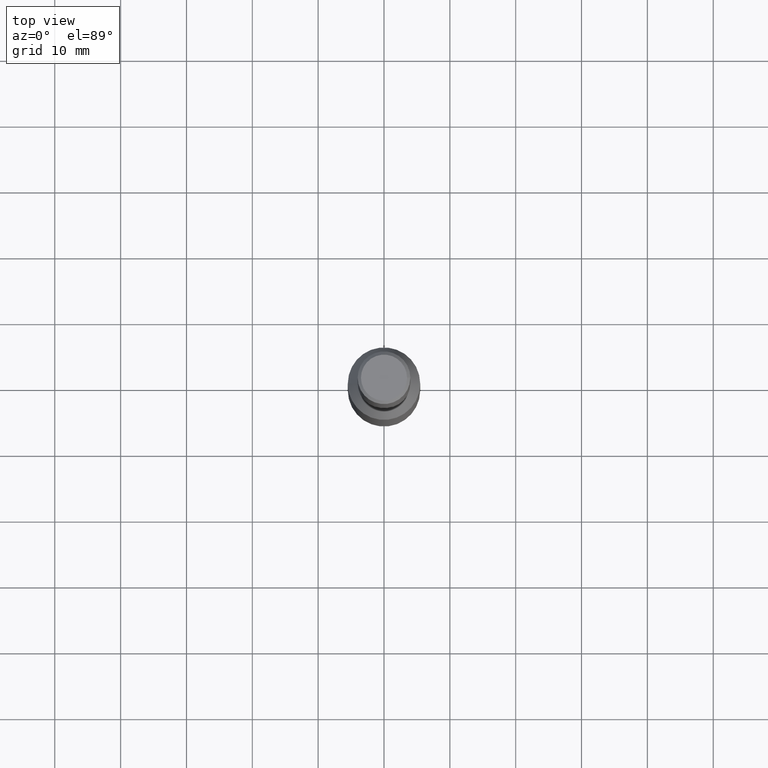
[diagram: clean part render]
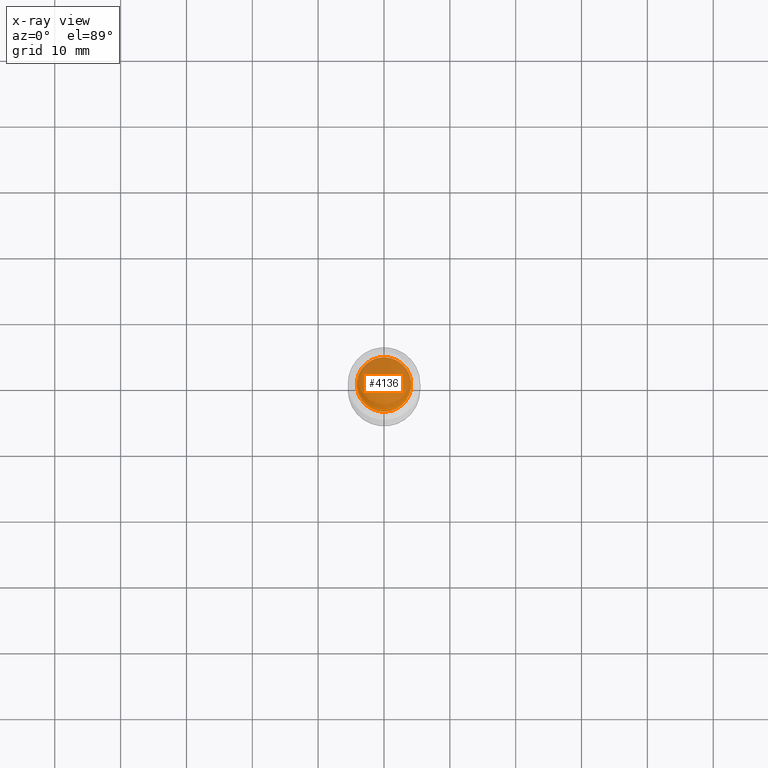
[diagram: x-ray — body ghosted, one internal face saturated and labeled with its STEP entity id]
A machine part, top view, then the same camera in x-ray: the body is ghosted and one INTERNAL B-rep face — a face not visible from any outside direction — is saturated and labeled: STEP entity #4136.
In plain terms, the highlighted conical surface has half-angle 59 deg.
Its self-contained STEP definition (entity closure, byte-faithful):
#1887 = CARTESIAN_POINT ( 'NONE',  ( 0.000000000000000000, -4.149999999999994138, 50.00000000000000000 ) ) ;
#2447 = CARTESIAN_POINT ( 'NONE',  ( 0.000000000000000000, -6.750259178104458467E-17, 50.00000000000000000 ) ) ;
#3180 = DIRECTION ( 'NONE',  ( 0.000000000000000000, 1.350051835620891801E-18, -1.000000000000000000 ) ) ;
#3690 = ORIENTED_EDGE ( 'NONE', *, *, #14327, .F. ) ;
#4136 = ADVANCED_FACE ( 'NONE', ( #13888 ), #4830, .F. ) ;
#4291 = DIRECTION ( 'NONE',  ( 0.000000000000000000, 1.000000000000000000, 0.000000000000000000 ) ) ;
#4830 = CONICAL_SURFACE ( 'NONE', #12383, 4.149999999999994138, 1.029744258676650093 ) ;
#6585 = CARTESIAN_POINT ( 'NONE',  ( 0.000000000000000000, -6.750259178104458467E-17, 50.00000000000000000 ) ) ;
#6810 = VERTEX_POINT ( 'NONE', #1887 ) ;
#11392 = DIRECTION ( 'NONE',  ( -0.000000000000000000, -1.350051835620891801E-18, 1.000000000000000000 ) ) ;
#12383 = AXIS2_PLACEMENT_3D ( 'NONE', #6585, #3180, #4291 ) ;
#12740 = CIRCLE ( 'NONE', #14261, 4.149999999999994138 ) ;
#13489 = EDGE_LOOP ( 'NONE', ( #3690 ) ) ;
#13637 = DIRECTION ( 'NONE',  ( 0.000000000000000000, -1.000000000000000000, 0.000000000000000000 ) ) ;
#13888 = FACE_OUTER_BOUND ( 'NONE', #13489, .T. ) ;
#14261 = AXIS2_PLACEMENT_3D ( 'NONE', #2447, #11392, #13637 ) ;
#14327 = EDGE_CURVE ( 'NONE', #6810, #6810, #12740, .T. ) ;